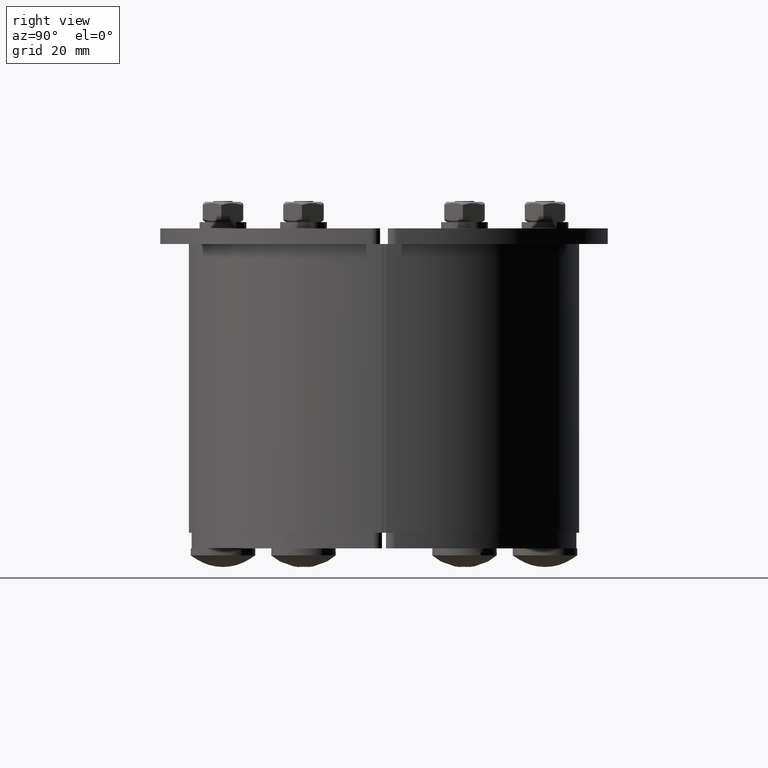
[diagram: clean part render]
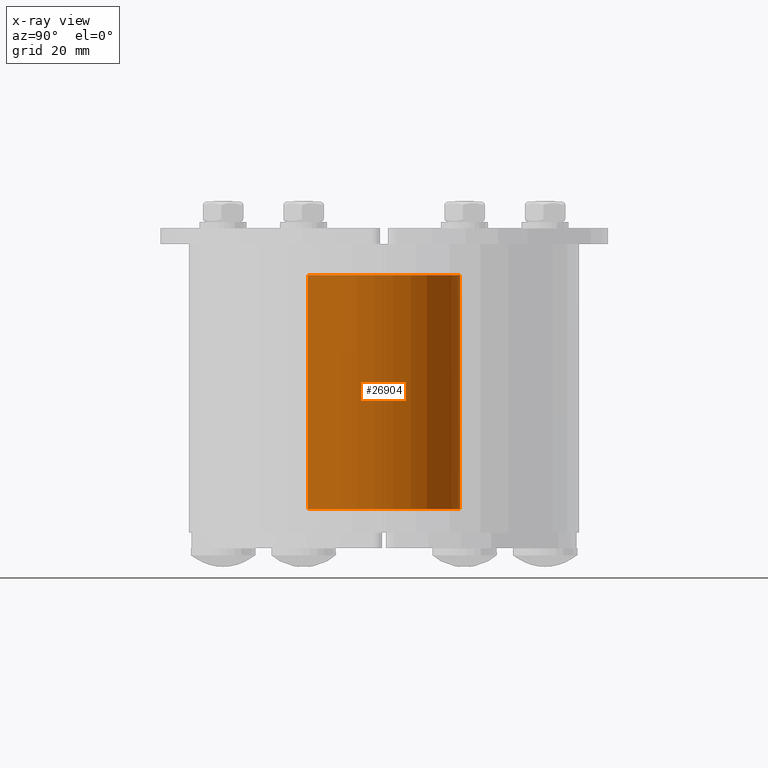
[diagram: x-ray — body ghosted, one internal face saturated and labeled with its STEP entity id]
A machine part, right view, then the same camera in x-ray: the body is ghosted and one INTERNAL B-rep face — a face not visible from any outside direction — is saturated and labeled: STEP entity #26904.
In plain terms, the highlighted cylindrical surface (bore or boss wall) has radius 19.5 mm, axis along (-0, 0, 1).
Its self-contained STEP definition (entity closure, byte-faithful):
#26877=CARTESIAN_POINT('',(0.0,0.0,0.0));
#26878=DIRECTION('',(0.0,0.0,1.0));
#26879=DIRECTION('',(-1.0,0.0,0.0));
#26880=AXIS2_PLACEMENT_3D('',#26877,#26878,#26879);
#26881=CYLINDRICAL_SURFACE('',#26880,19.5);
#26882=CARTESIAN_POINT('',(19.5,2.388061E-015,60.0));
#26883=VERTEX_POINT('',#26882);
#26884=CARTESIAN_POINT('',(0.0,0.0,60.0));
#26885=DIRECTION('',(0.0,0.0,1.0));
#26886=DIRECTION('',(-1.0,0.0,0.0));
#26887=AXIS2_PLACEMENT_3D('',#26884,#26885,#26886);
#26888=CIRCLE('',#26887,19.5);
#26889=EDGE_CURVE('',#26883,#26883,#26888,.T.);
#26890=ORIENTED_EDGE('',*,*,#26889,.F.);
#26891=EDGE_LOOP('',(#26890));
#26892=FACE_OUTER_BOUND('',#26891,.T.);
#26893=CARTESIAN_POINT('',(19.5,2.388061E-015,0.0));
#26894=VERTEX_POINT('',#26893);
#26895=CARTESIAN_POINT('',(0.0,0.0,0.0));
#26896=DIRECTION('',(0.0,0.0,-1.0));
#26897=DIRECTION('',(-1.0,0.0,0.0));
#26898=AXIS2_PLACEMENT_3D('',#26895,#26896,#26897);
#26899=CIRCLE('',#26898,19.5);
#26900=EDGE_CURVE('',#26894,#26894,#26899,.T.);
#26901=ORIENTED_EDGE('',*,*,#26900,.F.);
#26902=EDGE_LOOP('',(#26901));
#26903=FACE_BOUND('',#26902,.T.);
#26904=ADVANCED_FACE('',(#26892,#26903),#26881,.T.);